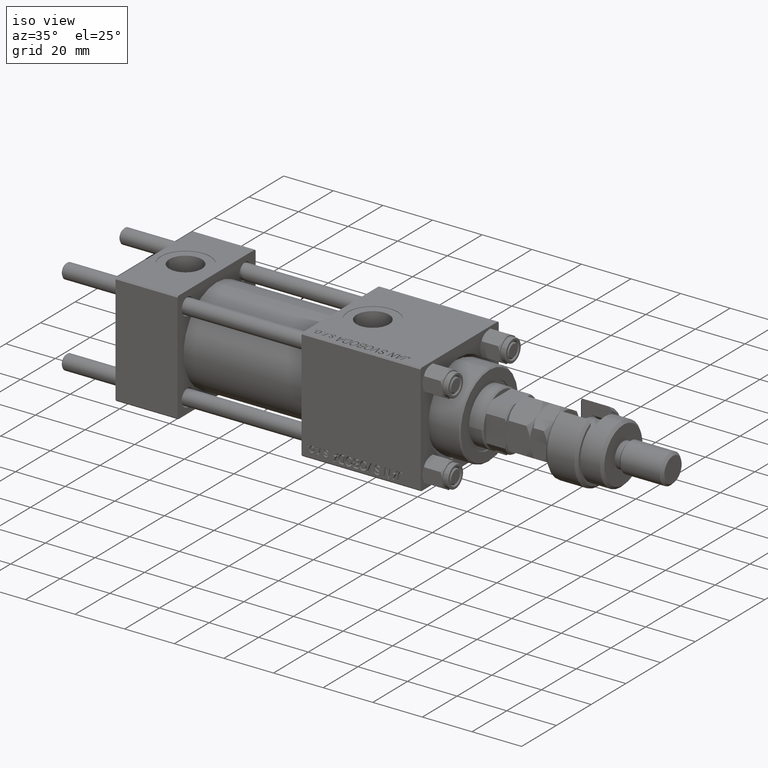
[diagram: clean part render]
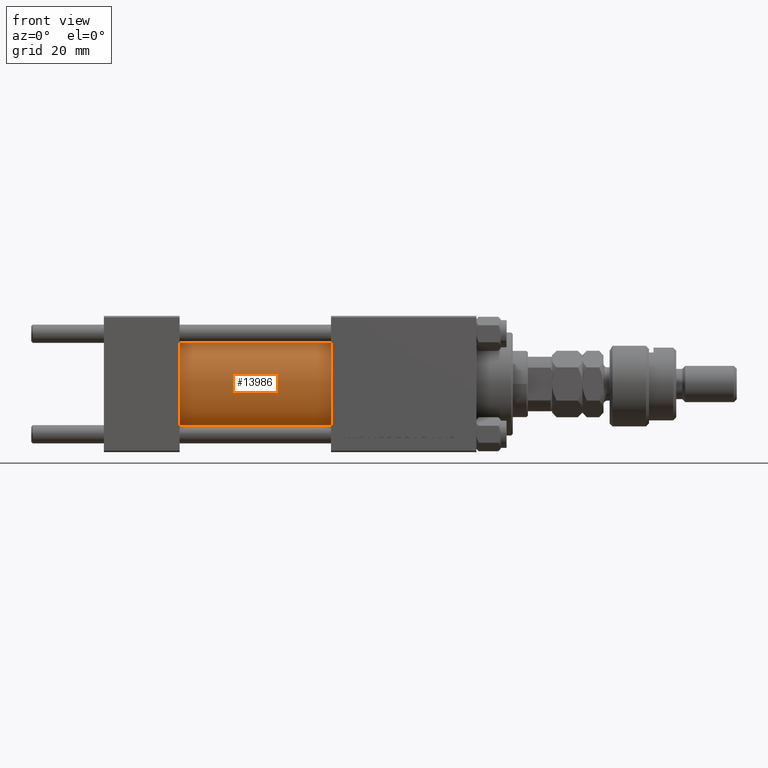
[diagram: tour spotlight — one face highlighted and labeled with its STEP entity id]
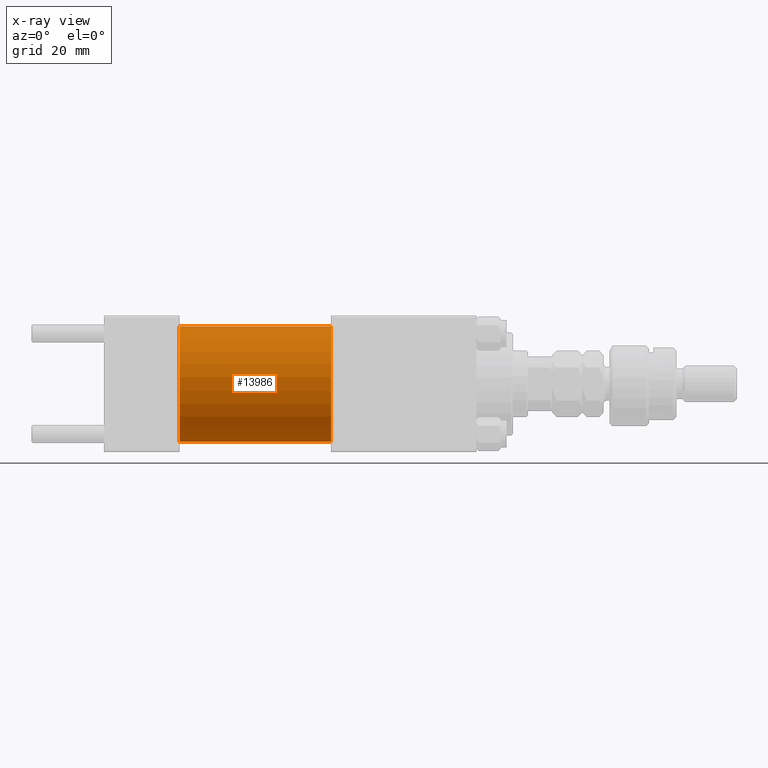
[diagram: x-ray of the same camera — body ghosted, this tour face saturated]
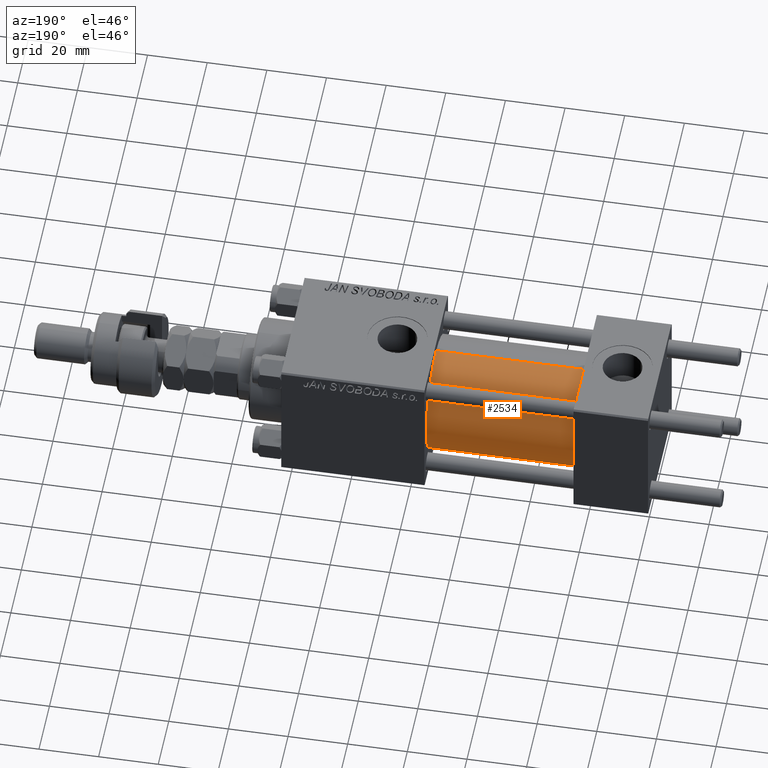
[diagram: tour spotlight — one face highlighted and labeled with its STEP entity id]
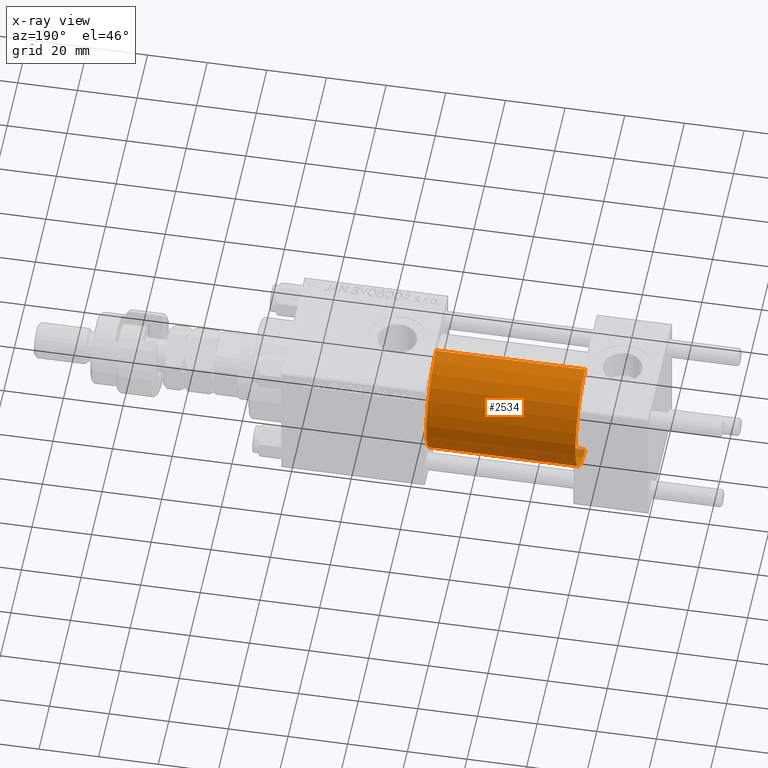
[diagram: x-ray of the same camera — body ghosted, this tour face saturated]
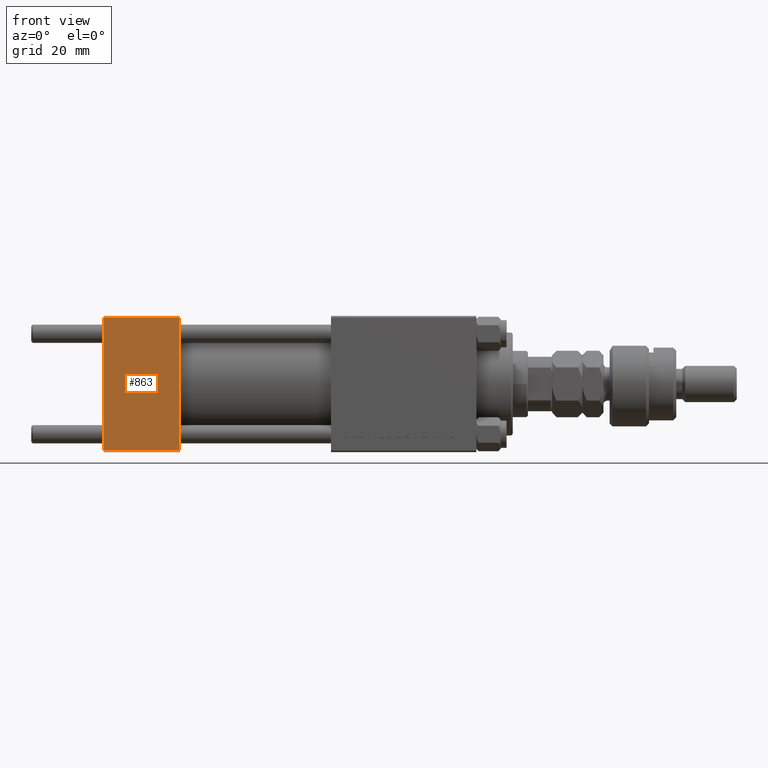
[diagram: tour spotlight — one face highlighted and labeled with its STEP entity id]
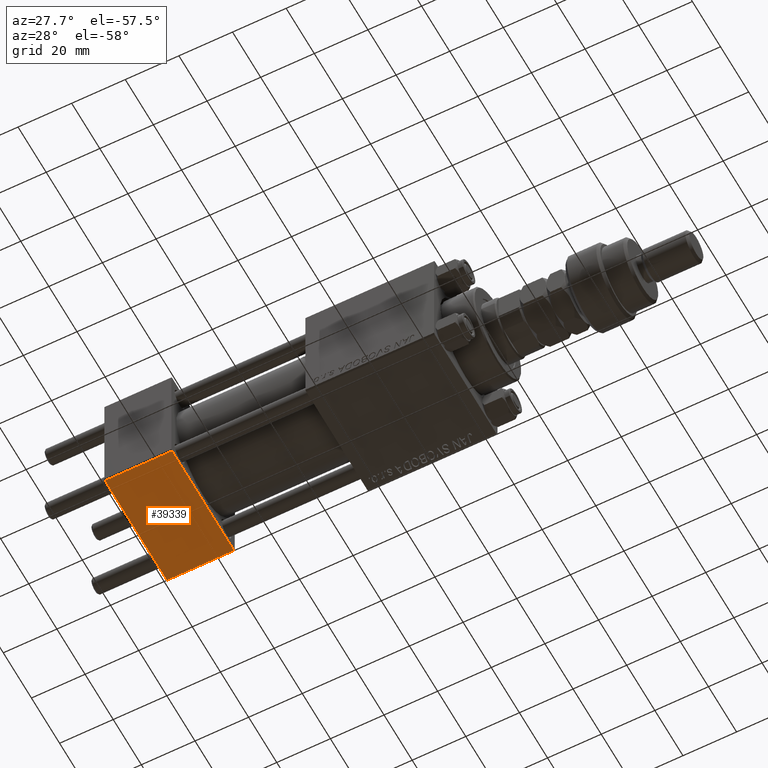
[diagram: tour spotlight — one face highlighted and labeled with its STEP entity id]
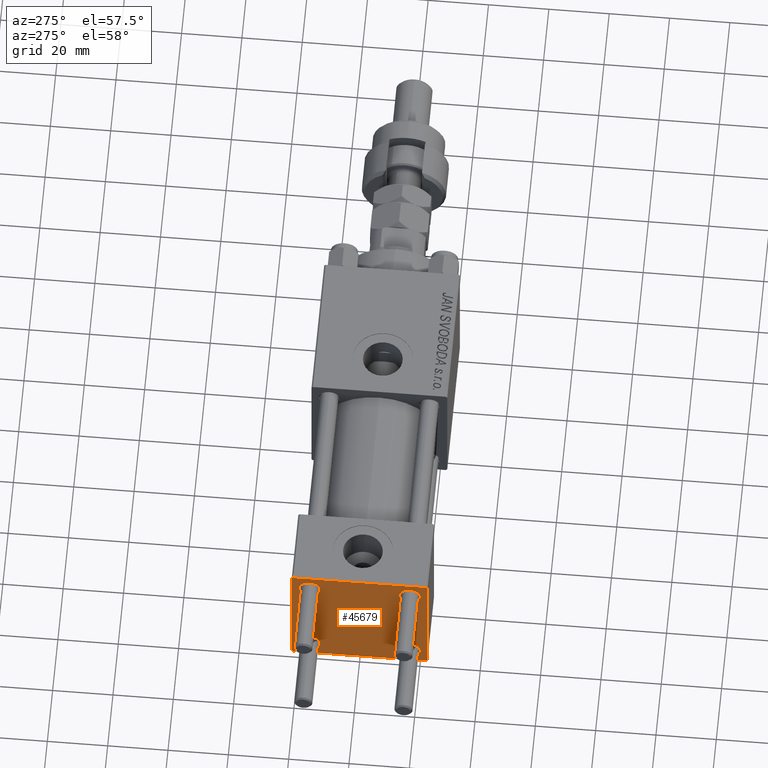
[diagram: tour spotlight — one face highlighted and labeled with its STEP entity id]
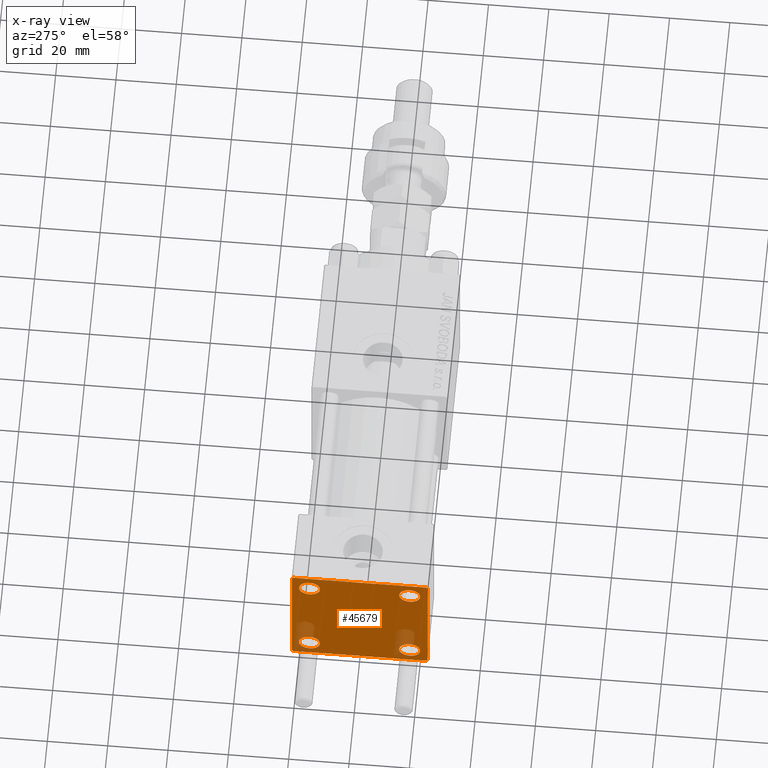
[diagram: x-ray of the same camera — body ghosted, this tour face saturated]
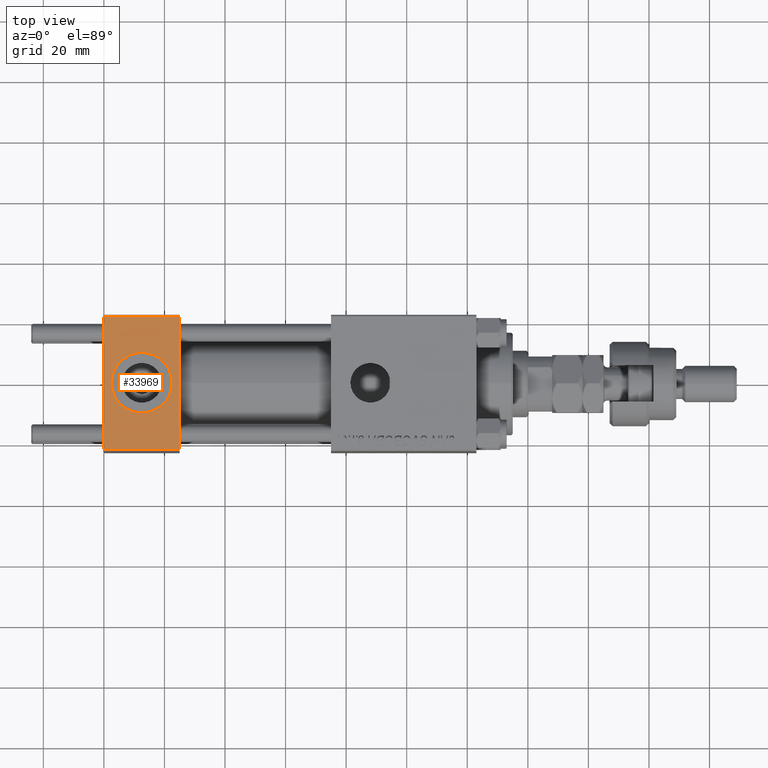
[diagram: tour spotlight — one face highlighted and labeled with its STEP entity id]
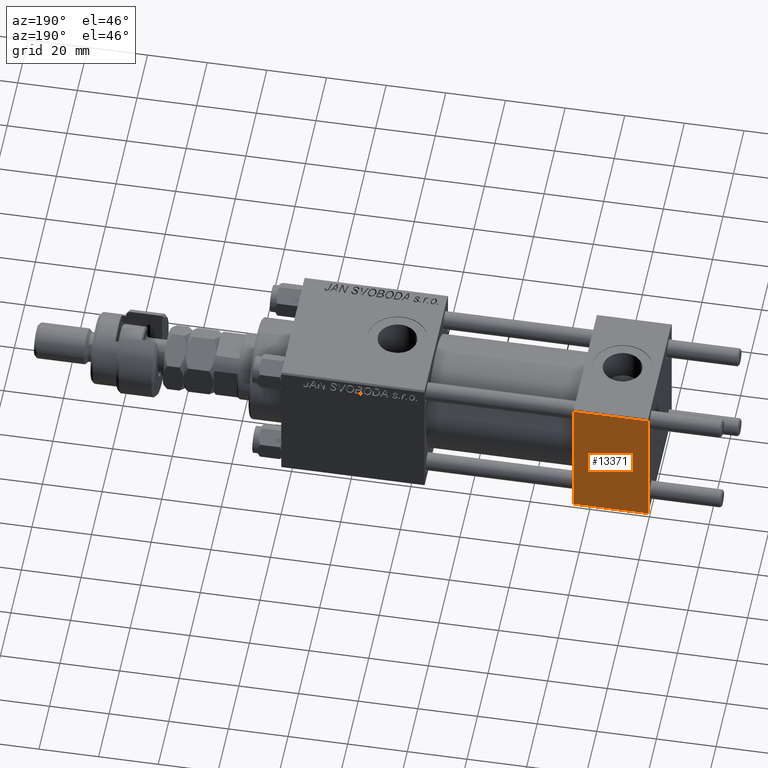
[diagram: tour spotlight — one face highlighted and labeled with its STEP entity id]
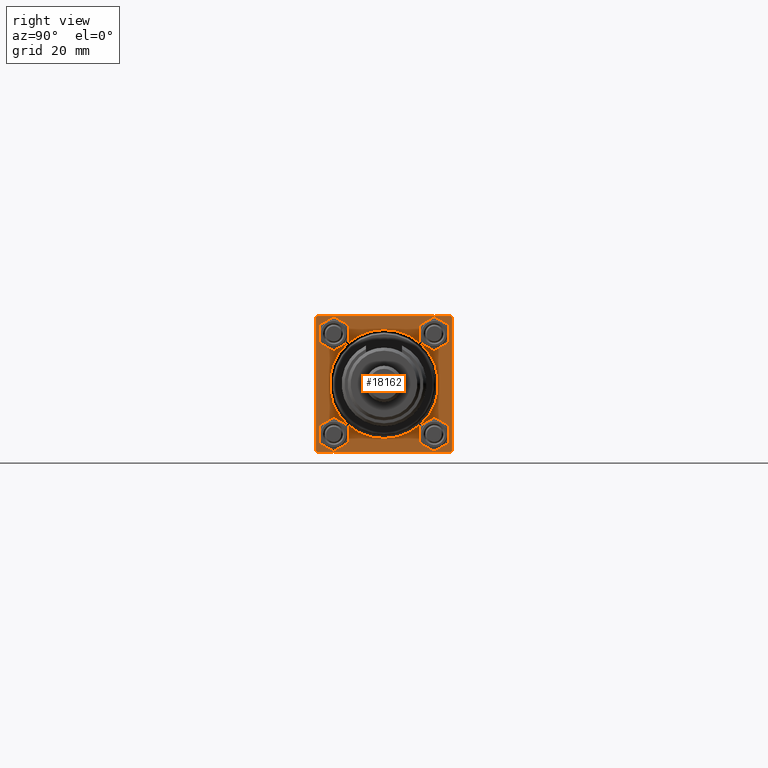
[diagram: tour spotlight — one face highlighted and labeled with its STEP entity id]
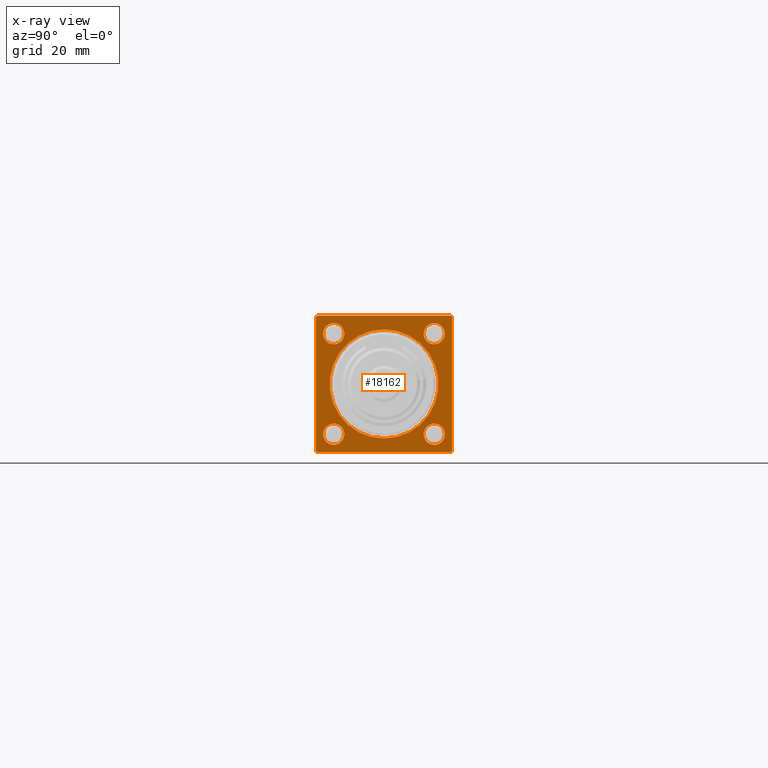
[diagram: x-ray of the same camera — body ghosted, this tour face saturated]
A machine part: a face-by-face anatomy tour. The part has 1218 B-rep faces; the first image is the clean iso view, then the 8 largest visible faces are spotlighted one at a time (largest first), each with its STEP entity span.

Face 1 — front view, entity #13986. An x-ray twin of the same camera follows (body ghosted, this face saturated) — the face is partly hidden behind the body. In plain terms, the highlighted cylindrical surface (partial cylindrical patch) has radius 19 mm, axis along (-1, -0, -0).
Definition (entity closure, byte-faithful):
#294 = ORIENTED_EDGE ( 'NONE', *, *, #11549, .T. ) ;
#334 = EDGE_CURVE ( 'NONE', #32173, #13300, #4693, .T. ) ;
#339 = VERTEX_POINT ( 'NONE', #12162 ) ;
#449 = DIRECTION ( 'NONE',  ( -1.000000000000000000, -0.000000000000000000, -0.000000000000000000 ) ) ;
#4610 = ORIENTED_EDGE ( 'NONE', *, *, #334, .F. ) ;
#4693 = LINE ( 'NONE', #16167, #45212 ) ;
#4881 = EDGE_LOOP ( 'NONE', ( #4610, #16284, #294, #13476 ) ) ;
#6749 = LINE ( 'NONE', #23780, #14803 ) ;
#8276 = CIRCLE ( 'NONE', #12496, 19.00000000000000000 ) ;
#9466 = DIRECTION ( 'NONE',  ( 0.000000000000000000, 0.000000000000000000, -1.000000000000000000 ) ) ;
#9508 = EDGE_CURVE ( 'NONE', #339, #32173, #43676, .T. ) ;
#9783 = AXIS2_PLACEMENT_3D ( 'NONE', #33895, #41647, #21141 ) ;
#11549 = EDGE_CURVE ( 'NONE', #339, #46081, #6749, .T. ) ;
#12162 = CARTESIAN_POINT ( 'NONE',  ( 75.00000000000001421, 0.000000000000000000, 19.00000000000000000 ) ) ;
#12496 = AXIS2_PLACEMENT_3D ( 'NONE', #49001, #31920, #48206 ) ;
#13300 = VERTEX_POINT ( 'NONE', #22360 ) ;
#13476 = ORIENTED_EDGE ( 'NONE', *, *, #34939, .T. ) ;
#13986 = ADVANCED_FACE ( 'NONE', ( #20605 ), #21664, .T. ) ;
#14803 = VECTOR ( 'NONE', #39235, 1000.000000000000000 ) ;
#16167 = CARTESIAN_POINT ( 'NONE',  ( 75.00000000000001421, 2.326828918379970970E-15, -19.00000000000000000 ) ) ;
#16284 = ORIENTED_EDGE ( 'NONE', *, *, #9508, .F. ) ;
#20605 = FACE_OUTER_BOUND ( 'NONE', #4881, .T. ) ;
#21141 = DIRECTION ( 'NONE',  ( 0.000000000000000000, 0.000000000000000000, 1.000000000000000000 ) ) ;
#21664 = CYLINDRICAL_SURFACE ( 'NONE', #9783, 19.00000000000000000 ) ;
#22360 = CARTESIAN_POINT ( 'NONE',  ( 25.00000000000000000, 2.326828918379970970E-15, -19.00000000000000000 ) ) ;
#23780 = CARTESIAN_POINT ( 'NONE',  ( 75.00000000000001421, 0.000000000000000000, 19.00000000000000000 ) ) ;
#26250 = DIRECTION ( 'NONE',  ( 1.000000000000000000, 0.000000000000000000, 0.000000000000000000 ) ) ;
#31920 = DIRECTION ( 'NONE',  ( 1.000000000000000000, -0.000000000000000000, 0.000000000000000000 ) ) ;
#32173 = VERTEX_POINT ( 'NONE', #47440 ) ;
#33895 = CARTESIAN_POINT ( 'NONE',  ( 75.00000000000001421, 0.000000000000000000, 0.000000000000000000 ) ) ;
#33971 = CARTESIAN_POINT ( 'NONE',  ( 75.00000000000001421, 0.000000000000000000, 0.000000000000000000 ) ) ;
#34939 = EDGE_CURVE ( 'NONE', #46081, #13300, #8276, .T. ) ;
#38975 = CARTESIAN_POINT ( 'NONE',  ( 25.00000000000000000, 0.000000000000000000, 19.00000000000000000 ) ) ;
#39235 = DIRECTION ( 'NONE',  ( -1.000000000000000000, -0.000000000000000000, -0.000000000000000000 ) ) ;
#39406 = AXIS2_PLACEMENT_3D ( 'NONE', #33971, #26250, #9466 ) ;
#41647 = DIRECTION ( 'NONE',  ( -1.000000000000000000, -0.000000000000000000, -0.000000000000000000 ) ) ;
#43676 = CIRCLE ( 'NONE', #39406, 19.00000000000000000 ) ;
#45212 = VECTOR ( 'NONE', #449, 1000.000000000000000 ) ;
#46081 = VERTEX_POINT ( 'NONE', #38975 ) ;
#47440 = CARTESIAN_POINT ( 'NONE',  ( 75.00000000000001421, 2.326828918379970970E-15, -19.00000000000000000 ) ) ;
#48206 = DIRECTION ( 'NONE',  ( 0.000000000000000000, 0.000000000000000000, 1.000000000000000000 ) ) ;
#49001 = CARTESIAN_POINT ( 'NONE',  ( 25.00000000000000000, 0.000000000000000000, 0.000000000000000000 ) ) ;

Face 2 — auxiliary view, entity #2534. An x-ray twin of the same camera follows (body ghosted, this face saturated) — the face is partly hidden behind the body. In plain terms, the highlighted cylindrical surface (partial cylindrical patch) has radius 19 mm, axis along (-1, -0, -0).
Definition (entity closure, byte-faithful):
#334 = EDGE_CURVE ( 'NONE', #32173, #13300, #4693, .T. ) ;
#339 = VERTEX_POINT ( 'NONE', #12162 ) ;
#449 = DIRECTION ( 'NONE',  ( -1.000000000000000000, -0.000000000000000000, -0.000000000000000000 ) ) ;
#2534 = ADVANCED_FACE ( 'NONE', ( #35975 ), #52269, .T. ) ;
#2697 = ORIENTED_EDGE ( 'NONE', *, *, #22152, .T. ) ;
#3636 = CIRCLE ( 'NONE', #33396, 19.00000000000000000 ) ;
#4693 = LINE ( 'NONE', #16167, #45212 ) ;
#6749 = LINE ( 'NONE', #23780, #14803 ) ;
#7333 = DIRECTION ( 'NONE',  ( 1.000000000000000000, -0.000000000000000000, 0.000000000000000000 ) ) ;
#9320 = CARTESIAN_POINT ( 'NONE',  ( 75.00000000000001421, 0.000000000000000000, 0.000000000000000000 ) ) ;
#9778 = DIRECTION ( 'NONE',  ( 0.000000000000000000, 0.000000000000000000, -1.000000000000000000 ) ) ;
#11549 = EDGE_CURVE ( 'NONE', #339, #46081, #6749, .T. ) ;
#12162 = CARTESIAN_POINT ( 'NONE',  ( 75.00000000000001421, 0.000000000000000000, 19.00000000000000000 ) ) ;
#13300 = VERTEX_POINT ( 'NONE', #22360 ) ;
#14803 = VECTOR ( 'NONE', #39235, 1000.000000000000000 ) ;
#14924 = EDGE_LOOP ( 'NONE', ( #41645, #34517, #2697, #39803 ) ) ;
#16167 = CARTESIAN_POINT ( 'NONE',  ( 75.00000000000001421, 2.326828918379970970E-15, -19.00000000000000000 ) ) ;
#17055 = DIRECTION ( 'NONE',  ( 0.000000000000000000, 0.000000000000000000, 1.000000000000000000 ) ) ;
#19938 = CIRCLE ( 'NONE', #33545, 19.00000000000000000 ) ;
#21582 = DIRECTION ( 'NONE',  ( -1.000000000000000000, -0.000000000000000000, -0.000000000000000000 ) ) ;
#22152 = EDGE_CURVE ( 'NONE', #13300, #46081, #3636, .T. ) ;
#22360 = CARTESIAN_POINT ( 'NONE',  ( 25.00000000000000000, 2.326828918379970970E-15, -19.00000000000000000 ) ) ;
#23574 = DIRECTION ( 'NONE',  ( 0.000000000000000000, 0.000000000000000000, 1.000000000000000000 ) ) ;
#23780 = CARTESIAN_POINT ( 'NONE',  ( 75.00000000000001421, 0.000000000000000000, 19.00000000000000000 ) ) ;
#32173 = VERTEX_POINT ( 'NONE', #47440 ) ;
#33396 = AXIS2_PLACEMENT_3D ( 'NONE', #43840, #7333, #23574 ) ;
#33545 = AXIS2_PLACEMENT_3D ( 'NONE', #35050, #38539, #9778 ) ;
#34517 = ORIENTED_EDGE ( 'NONE', *, *, #334, .T. ) ;
#35050 = CARTESIAN_POINT ( 'NONE',  ( 75.00000000000001421, 0.000000000000000000, 0.000000000000000000 ) ) ;
#35975 = FACE_OUTER_BOUND ( 'NONE', #14924, .T. ) ;
#37624 = AXIS2_PLACEMENT_3D ( 'NONE', #9320, #21582, #17055 ) ;
#38539 = DIRECTION ( 'NONE',  ( 1.000000000000000000, 0.000000000000000000, 0.000000000000000000 ) ) ;
#38975 = CARTESIAN_POINT ( 'NONE',  ( 25.00000000000000000, 0.000000000000000000, 19.00000000000000000 ) ) ;
#39235 = DIRECTION ( 'NONE',  ( -1.000000000000000000, -0.000000000000000000, -0.000000000000000000 ) ) ;
#39803 = ORIENTED_EDGE ( 'NONE', *, *, #11549, .F. ) ;
#41645 = ORIENTED_EDGE ( 'NONE', *, *, #48228, .F. ) ;
#43840 = CARTESIAN_POINT ( 'NONE',  ( 25.00000000000000000, 0.000000000000000000, 0.000000000000000000 ) ) ;
#45212 = VECTOR ( 'NONE', #449, 1000.000000000000000 ) ;
#46081 = VERTEX_POINT ( 'NONE', #38975 ) ;
#47440 = CARTESIAN_POINT ( 'NONE',  ( 75.00000000000001421, 2.326828918379970970E-15, -19.00000000000000000 ) ) ;
#48228 = EDGE_CURVE ( 'NONE', #32173, #339, #19938, .T. ) ;
#52269 = CYLINDRICAL_SURFACE ( 'NONE', #37624, 19.00000000000000000 ) ;

Face 3 — front view, entity #863. In plain terms, the highlighted planar face has unit normal (0, 1, 0).
Definition (entity closure, byte-faithful):
#863 = ADVANCED_FACE ( 'NONE', ( #26305 ), #42562, .F. ) ;
#2107 = VECTOR ( 'NONE', #2839, 1000.000000000000000 ) ;
#2839 = DIRECTION ( 'NONE',  ( 1.000000000000000000, 0.000000000000000000, 0.000000000000000000 ) ) ;
#3574 = CARTESIAN_POINT ( 'NONE',  ( 25.00000000000000000, -22.50000000000000000, 22.00000000000000000 ) ) ;
#6056 = CARTESIAN_POINT ( 'NONE',  ( 25.00000000000000000, -22.50000000000000000, 22.50000000000000000 ) ) ;
#7314 = DIRECTION ( 'NONE',  ( 0.000000000000000000, 0.000000000000000000, -1.000000000000000000 ) ) ;
#7835 = ORIENTED_EDGE ( 'NONE', *, *, #31986, .T. ) ;
#10237 = EDGE_CURVE ( 'NONE', #19408, #50274, #36675, .T. ) ;
#11451 = EDGE_LOOP ( 'NONE', ( #7835, #39050, #45398, #31714 ) ) ;
#12051 = CARTESIAN_POINT ( 'NONE',  ( 0.000000000000000000, -22.50000000000000000, 22.50000000000000000 ) ) ;
#12989 = VERTEX_POINT ( 'NONE', #51797 ) ;
#17213 = DIRECTION ( 'NONE',  ( -1.000000000000000000, 0.000000000000000000, 0.000000000000000000 ) ) ;
#19082 = LINE ( 'NONE', #39328, #2107 ) ;
#19408 = VERTEX_POINT ( 'NONE', #3574 ) ;
#19708 = AXIS2_PLACEMENT_3D ( 'NONE', #6056, #22308, #28424 ) ;
#20297 = EDGE_CURVE ( 'NONE', #19408, #12989, #51821, .T. ) ;
#20562 = DIRECTION ( 'NONE',  ( 0.000000000000000000, 0.000000000000000000, -1.000000000000000000 ) ) ;
#22296 = VECTOR ( 'NONE', #7314, 1000.000000000000000 ) ;
#22308 = DIRECTION ( 'NONE',  ( -0.000000000000000000, 1.000000000000000000, 0.000000000000000000 ) ) ;
#24433 = VECTOR ( 'NONE', #20562, 1000.000000000000000 ) ;
#26305 = FACE_OUTER_BOUND ( 'NONE', #11451, .T. ) ;
#28424 = DIRECTION ( 'NONE',  ( 0.000000000000000000, -0.000000000000000000, 1.000000000000000000 ) ) ;
#28701 = CARTESIAN_POINT ( 'NONE',  ( 25.00000000000000000, -22.50000000000000000, 22.00000000000000000 ) ) ;
#29926 = CARTESIAN_POINT ( 'NONE',  ( 0.000000000000000000, -22.50000000000000000, 22.00000000000000000 ) ) ;
#31714 = ORIENTED_EDGE ( 'NONE', *, *, #10237, .T. ) ;
#31986 = EDGE_CURVE ( 'NONE', #50274, #42741, #36280, .T. ) ;
#35174 = VECTOR ( 'NONE', #17213, 1000.000000000000000 ) ;
#35274 = CARTESIAN_POINT ( 'NONE',  ( 25.00000000000000000, -22.50000000000000000, 22.50000000000000000 ) ) ;
#36280 = LINE ( 'NONE', #12051, #24433 ) ;
#36675 = LINE ( 'NONE', #28701, #35174 ) ;
#39050 = ORIENTED_EDGE ( 'NONE', *, *, #49055, .T. ) ;
#39328 = CARTESIAN_POINT ( 'NONE',  ( 25.00000000000000000, -22.50000000000000000, -21.99999999999998579 ) ) ;
#42562 = PLANE ( 'NONE',  #19708 ) ;
#42741 = VERTEX_POINT ( 'NONE', #44972 ) ;
#44972 = CARTESIAN_POINT ( 'NONE',  ( 0.000000000000000000, -22.50000000000000000, -21.99999999999997158 ) ) ;
#45398 = ORIENTED_EDGE ( 'NONE', *, *, #20297, .F. ) ;
#49055 = EDGE_CURVE ( 'NONE', #42741, #12989, #19082, .T. ) ;
#50274 = VERTEX_POINT ( 'NONE', #29926 ) ;
#51797 = CARTESIAN_POINT ( 'NONE',  ( 25.00000000000000000, -22.50000000000000000, -21.99999999999997158 ) ) ;
#51821 = LINE ( 'NONE', #35274, #22296 ) ;

Face 4 — auxiliary view, entity #39339. In plain terms, the highlighted planar face has unit normal (0, 0, -1).
Definition (entity closure, byte-faithful):
#276 = LINE ( 'NONE', #32748, #40178 ) ;
#1296 = LINE ( 'NONE', #30037, #12194 ) ;
#2362 = ORIENTED_EDGE ( 'NONE', *, *, #23021, .T. ) ;
#4943 = VERTEX_POINT ( 'NONE', #17636 ) ;
#9243 = EDGE_CURVE ( 'NONE', #43518, #4943, #1296, .T. ) ;
#10954 = CARTESIAN_POINT ( 'NONE',  ( 25.00000000000000000, 21.99999999999999289, -22.49999999999999645 ) ) ;
#12194 = VECTOR ( 'NONE', #46576, 1000.000000000000000 ) ;
#12461 = CARTESIAN_POINT ( 'NONE',  ( 25.00000000000000000, 21.99999999999999289, -22.49999999999999645 ) ) ;
#13507 = AXIS2_PLACEMENT_3D ( 'NONE', #41938, #45944, #34447 ) ;
#14364 = CARTESIAN_POINT ( 'NONE',  ( 25.00000000000000000, 22.50000000000000000, -22.49999999999999645 ) ) ;
#16726 = CARTESIAN_POINT ( 'NONE',  ( 25.00000000000000000, -21.99999999999997158, -22.50000000000000711 ) ) ;
#17636 = CARTESIAN_POINT ( 'NONE',  ( 0.000000000000000000, -21.99999999999997158, -22.50000000000000711 ) ) ;
#17934 = FACE_OUTER_BOUND ( 'NONE', #48771, .T. ) ;
#18025 = EDGE_CURVE ( 'NONE', #41090, #4943, #276, .T. ) ;
#20006 = LINE ( 'NONE', #10954, #36324 ) ;
#21508 = CARTESIAN_POINT ( 'NONE',  ( 0.000000000000000000, 21.99999999999999289, -22.49999999999999645 ) ) ;
#23021 = EDGE_CURVE ( 'NONE', #33165, #43518, #51385, .T. ) ;
#26455 = PLANE ( 'NONE',  #13507 ) ;
#27464 = VECTOR ( 'NONE', #50342, 1000.000000000000000 ) ;
#30037 = CARTESIAN_POINT ( 'NONE',  ( 0.000000000000000000, -21.99999999999998579, -22.50000000000000711 ) ) ;
#32634 = ORIENTED_EDGE ( 'NONE', *, *, #18025, .F. ) ;
#32748 = CARTESIAN_POINT ( 'NONE',  ( 0.000000000000000000, 22.50000000000000000, -22.49999999999999645 ) ) ;
#33165 = VERTEX_POINT ( 'NONE', #12461 ) ;
#34447 = DIRECTION ( 'NONE',  ( 0.000000000000000000, 1.000000000000000000, 2.312964634635742957E-16 ) ) ;
#35881 = EDGE_CURVE ( 'NONE', #41090, #33165, #20006, .T. ) ;
#36324 = VECTOR ( 'NONE', #48537, 1000.000000000000000 ) ;
#38598 = ORIENTED_EDGE ( 'NONE', *, *, #9243, .T. ) ;
#39339 = ADVANCED_FACE ( 'NONE', ( #17934 ), #26455, .T. ) ;
#40178 = VECTOR ( 'NONE', #49035, 1000.000000000000000 ) ;
#41090 = VERTEX_POINT ( 'NONE', #21508 ) ;
#41938 = CARTESIAN_POINT ( 'NONE',  ( 25.00000000000000000, 22.50000000000000000, -22.49999999999999645 ) ) ;
#43518 = VERTEX_POINT ( 'NONE', #16726 ) ;
#45944 = DIRECTION ( 'NONE',  ( 0.000000000000000000, 2.312964634635742957E-16, -1.000000000000000000 ) ) ;
#46576 = DIRECTION ( 'NONE',  ( -1.000000000000000000, 0.000000000000000000, 0.000000000000000000 ) ) ;
#48424 = ORIENTED_EDGE ( 'NONE', *, *, #35881, .T. ) ;
#48537 = DIRECTION ( 'NONE',  ( 1.000000000000000000, 0.000000000000000000, 0.000000000000000000 ) ) ;
#48771 = EDGE_LOOP ( 'NONE', ( #32634, #48424, #2362, #38598 ) ) ;
#49035 = DIRECTION ( 'NONE',  ( 0.000000000000000000, -1.000000000000000000, -2.312964634635742957E-16 ) ) ;
#50342 = DIRECTION ( 'NONE',  ( 0.000000000000000000, -1.000000000000000000, -2.312964634635742957E-16 ) ) ;
#51385 = LINE ( 'NONE', #14364, #27464 ) ;

Face 5 — auxiliary view, entity #45679. An x-ray twin of the same camera follows (body ghosted, this face saturated) — the face is partly hidden behind the body. In plain terms, the highlighted planar face has unit normal (-1, 0, 0).
Definition (entity closure, byte-faithful):
#6 = VERTEX_POINT ( 'NONE', #11152 ) ;
#276 = LINE ( 'NONE', #32748, #40178 ) ;
#1169 = VECTOR ( 'NONE', #36497, 1000.000000000000000 ) ;
#1471 = AXIS2_PLACEMENT_3D ( 'NONE', #14594, #43365, #15119 ) ;
#1893 = CARTESIAN_POINT ( 'NONE',  ( 0.000000000000000000, 22.24999999999999645, 22.24999999999999645 ) ) ;
#2099 = DIRECTION ( 'NONE',  ( -0.000000000000000000, 0.7071067811865525687, 0.7071067811865425767 ) ) ;
#2455 = CARTESIAN_POINT ( 'NONE',  ( 0.000000000000000000, -16.59999999999999076, 16.60000000000000853 ) ) ;
#2536 = CARTESIAN_POINT ( 'NONE',  ( 0.000000000000000000, 16.59999999999999787, -20.10000000000000142 ) ) ;
#2978 = VECTOR ( 'NONE', #42134, 1000.000000000000114 ) ;
#3954 = ORIENTED_EDGE ( 'NONE', *, *, #18025, .T. ) ;
#4296 = ORIENTED_EDGE ( 'NONE', *, *, #32440, .T. ) ;
#4807 = CARTESIAN_POINT ( 'NONE',  ( 0.000000000000000000, -16.59999999999999076, -16.60000000000000853 ) ) ;
#4943 = VERTEX_POINT ( 'NONE', #17636 ) ;
#5162 = CARTESIAN_POINT ( 'NONE',  ( 0.000000000000000000, -16.59999999999999076, -13.10000000000001030 ) ) ;
#5373 = ORIENTED_EDGE ( 'NONE', *, *, #7657, .T. ) ;
#5990 = CARTESIAN_POINT ( 'NONE',  ( 0.000000000000000000, 22.50000000000000000, -21.99999999999996803 ) ) ;
#6450 = DIRECTION ( 'NONE',  ( 0.000000000000000000, 0.000000000000000000, 1.000000000000000000 ) ) ;
#6454 = EDGE_LOOP ( 'NONE', ( #42285, #46449 ) ) ;
#7055 = EDGE_CURVE ( 'NONE', #31303, #31604, #29971, .T. ) ;
#7116 = VECTOR ( 'NONE', #43501, 1000.000000000000000 ) ;
#7489 = ORIENTED_EDGE ( 'NONE', *, *, #11808, .T. ) ;
#7553 = CARTESIAN_POINT ( 'NONE',  ( 0.000000000000000000, -16.59999999999999076, 13.10000000000001030 ) ) ;
#7657 = EDGE_CURVE ( 'NONE', #36420, #25896, #14652, .T. ) ;
#7953 = LINE ( 'NONE', #35640, #12533 ) ;
#8693 = VERTEX_POINT ( 'NONE', #5990 ) ;
#8964 = DIRECTION ( 'NONE',  ( -0.000000000000000000, 0.000000000000000000, 1.000000000000000000 ) ) ;
#10132 = VERTEX_POINT ( 'NONE', #19904 ) ;
#10804 = CIRCLE ( 'NONE', #1471, 3.499999999999996003 ) ;
#11152 = CARTESIAN_POINT ( 'NONE',  ( 0.000000000000000000, 22.50000000000000000, 21.99999999999999645 ) ) ;
#11200 = ORIENTED_EDGE ( 'NONE', *, *, #42448, .T. ) ;
#11422 = CIRCLE ( 'NONE', #12273, 3.499999999999996003 ) ;
#11576 = EDGE_CURVE ( 'NONE', #4943, #42741, #51516, .T. ) ;
#11808 = EDGE_CURVE ( 'NONE', #31604, #31303, #11422, .T. ) ;
#12010 = DIRECTION ( 'NONE',  ( 0.000000000000000000, 0.000000000000000000, 1.000000000000000000 ) ) ;
#12051 = CARTESIAN_POINT ( 'NONE',  ( 0.000000000000000000, -22.50000000000000000, 22.50000000000000000 ) ) ;
#12142 = CARTESIAN_POINT ( 'NONE',  ( 0.000000000000000000, 21.99999999999999289, 22.50000000000000355 ) ) ;
#12273 = AXIS2_PLACEMENT_3D ( 'NONE', #46854, #22341, #33337 ) ;
#12319 = DIRECTION ( 'NONE',  ( 0.000000000000000000, 0.000000000000000000, 1.000000000000000000 ) ) ;
#12533 = VECTOR ( 'NONE', #35377, 1000.000000000000000 ) ;
#12962 = DIRECTION ( 'NONE',  ( -1.000000000000000000, 0.000000000000000000, -0.000000000000000000 ) ) ;
#14479 = CARTESIAN_POINT ( 'NONE',  ( 0.000000000000000000, 22.25000000000014566, -22.24999999999984013 ) ) ;
#14484 = CARTESIAN_POINT ( 'NONE',  ( 0.000000000000000000, -22.25000000000014566, -22.24999999999984013 ) ) ;
#14594 = CARTESIAN_POINT ( 'NONE',  ( 0.000000000000000000, -16.59999999999999076, 16.60000000000000853 ) ) ;
#14652 = CIRCLE ( 'NONE', #44456, 3.499999999999996003 ) ;
#15003 = DIRECTION ( 'NONE',  ( 0.000000000000000000, -0.7071067811865426878, 0.7071067811865524577 ) ) ;
#15119 = DIRECTION ( 'NONE',  ( 0.000000000000000000, 0.000000000000000000, 1.000000000000000000 ) ) ;
#15594 = AXIS2_PLACEMENT_3D ( 'NONE', #32229, #12962, #8964 ) ;
#15998 = FACE_BOUND ( 'NONE', #44794, .T. ) ;
#16238 = ORIENTED_EDGE ( 'NONE', *, *, #36176, .F. ) ;
#16385 = VERTEX_POINT ( 'NONE', #23812 ) ;
#16794 = CIRCLE ( 'NONE', #45624, 3.499999999999996003 ) ;
#17020 = CARTESIAN_POINT ( 'NONE',  ( 0.000000000000000000, 16.59999999999999787, 16.60000000000000497 ) ) ;
#17472 = VERTEX_POINT ( 'NONE', #18190 ) ;
#17576 = EDGE_CURVE ( 'NONE', #10132, #17472, #25684, .T. ) ;
#17636 = CARTESIAN_POINT ( 'NONE',  ( 0.000000000000000000, -21.99999999999997158, -22.50000000000000711 ) ) ;
#18025 = EDGE_CURVE ( 'NONE', #41090, #4943, #276, .T. ) ;
#18190 = CARTESIAN_POINT ( 'NONE',  ( 0.000000000000000000, 16.59999999999999787, 13.10000000000000675 ) ) ;
#19275 = AXIS2_PLACEMENT_3D ( 'NONE', #17020, #25529, #49534 ) ;
#19383 = LINE ( 'NONE', #51907, #50531 ) ;
#19734 = ORIENTED_EDGE ( 'NONE', *, *, #31986, .F. ) ;
#19904 = CARTESIAN_POINT ( 'NONE',  ( 0.000000000000000000, 16.59999999999999787, 20.10000000000000142 ) ) ;
#20562 = DIRECTION ( 'NONE',  ( 0.000000000000000000, 0.000000000000000000, -1.000000000000000000 ) ) ;
#20934 = DIRECTION ( 'NONE',  ( 1.000000000000000000, -0.000000000000000000, 0.000000000000000000 ) ) ;
#20967 = CARTESIAN_POINT ( 'NONE',  ( 0.000000000000000000, -16.59999999999999076, -16.60000000000000853 ) ) ;
#21508 = CARTESIAN_POINT ( 'NONE',  ( 0.000000000000000000, 21.99999999999999289, -22.49999999999999645 ) ) ;
#22106 = ORIENTED_EDGE ( 'NONE', *, *, #11576, .T. ) ;
#22138 = LINE ( 'NONE', #1893, #2978 ) ;
#22341 = DIRECTION ( 'NONE',  ( 1.000000000000000000, -0.000000000000000000, 0.000000000000000000 ) ) ;
#22371 = CARTESIAN_POINT ( 'NONE',  ( 0.000000000000000000, 16.59999999999999787, -16.60000000000000497 ) ) ;
#22635 = DIRECTION ( 'NONE',  ( 0.000000000000000000, 0.000000000000000000, 1.000000000000000000 ) ) ;
#22687 = ORIENTED_EDGE ( 'NONE', *, *, #31237, .T. ) ;
#22908 = CARTESIAN_POINT ( 'NONE',  ( 0.000000000000000000, -16.59999999999999076, 20.10000000000000853 ) ) ;
#23812 = CARTESIAN_POINT ( 'NONE',  ( 0.000000000000000000, -21.99999999999997868, 22.50000000000000000 ) ) ;
#23964 = FACE_BOUND ( 'NONE', #50853, .T. ) ;
#24301 = EDGE_LOOP ( 'NONE', ( #11200, #35581, #3954, #22106, #19734, #31858, #16238, #46672 ) ) ;
#24433 = VECTOR ( 'NONE', #20562, 1000.000000000000000 ) ;
#24629 = CARTESIAN_POINT ( 'NONE',  ( 0.000000000000000000, 16.59999999999999787, -13.10000000000000675 ) ) ;
#25014 = CARTESIAN_POINT ( 'NONE',  ( 0.000000000000000000, -16.59999999999999076, -20.10000000000000497 ) ) ;
#25444 = CIRCLE ( 'NONE', #32252, 3.499999999999996003 ) ;
#25529 = DIRECTION ( 'NONE',  ( 1.000000000000000000, -0.000000000000000000, 0.000000000000000000 ) ) ;
#25684 = CIRCLE ( 'NONE', #43556, 3.499999999999996003 ) ;
#25896 = VERTEX_POINT ( 'NONE', #22908 ) ;
#26628 = DIRECTION ( 'NONE',  ( 1.000000000000000000, -0.000000000000000000, 0.000000000000000000 ) ) ;
#27765 = VERTEX_POINT ( 'NONE', #5162 ) ;
#27979 = LINE ( 'NONE', #40774, #1169 ) ;
#28904 = VERTEX_POINT ( 'NONE', #25014 ) ;
#29926 = CARTESIAN_POINT ( 'NONE',  ( 0.000000000000000000, -22.50000000000000000, 22.00000000000000000 ) ) ;
#29971 = CIRCLE ( 'NONE', #35058, 3.499999999999996003 ) ;
#30253 = DIRECTION ( 'NONE',  ( 1.000000000000000000, -0.000000000000000000, 0.000000000000000000 ) ) ;
#31237 = EDGE_CURVE ( 'NONE', #17472, #10132, #32873, .T. ) ;
#31303 = VERTEX_POINT ( 'NONE', #2536 ) ;
#31604 = VERTEX_POINT ( 'NONE', #24629 ) ;
#31858 = ORIENTED_EDGE ( 'NONE', *, *, #42606, .T. ) ;
#31986 = EDGE_CURVE ( 'NONE', #50274, #42741, #36280, .T. ) ;
#32229 = CARTESIAN_POINT ( 'NONE',  ( 0.000000000000000000, 0.000000000000000000, 0.000000000000000000 ) ) ;
#32252 = AXIS2_PLACEMENT_3D ( 'NONE', #4807, #45300, #12010 ) ;
#32440 = EDGE_CURVE ( 'NONE', #25896, #36420, #10804, .T. ) ;
#32655 = EDGE_CURVE ( 'NONE', #27765, #28904, #16794, .T. ) ;
#32677 = VECTOR ( 'NONE', #15003, 1000.000000000000000 ) ;
#32748 = CARTESIAN_POINT ( 'NONE',  ( 0.000000000000000000, 22.50000000000000000, -22.49999999999999645 ) ) ;
#32873 = CIRCLE ( 'NONE', #19275, 3.499999999999996003 ) ;
#33337 = DIRECTION ( 'NONE',  ( 0.000000000000000000, 0.000000000000000000, 1.000000000000000000 ) ) ;
#33981 = DIRECTION ( 'NONE',  ( 0.000000000000000000, 0.000000000000000000, 1.000000000000000000 ) ) ;
#35058 = AXIS2_PLACEMENT_3D ( 'NONE', #22371, #26628, #22635 ) ;
#35377 = DIRECTION ( 'NONE',  ( 0.000000000000000000, -1.000000000000000000, -7.709882115452476934E-17 ) ) ;
#35581 = ORIENTED_EDGE ( 'NONE', *, *, #46090, .T. ) ;
#35640 = CARTESIAN_POINT ( 'NONE',  ( 0.000000000000000000, 22.50000000000000000, 22.50000000000000355 ) ) ;
#36176 = EDGE_CURVE ( 'NONE', #52267, #16385, #7953, .T. ) ;
#36220 = FACE_OUTER_BOUND ( 'NONE', #24301, .T. ) ;
#36280 = LINE ( 'NONE', #12051, #24433 ) ;
#36420 = VERTEX_POINT ( 'NONE', #7553 ) ;
#36497 = DIRECTION ( 'NONE',  ( 0.000000000000000000, 0.000000000000000000, -1.000000000000000000 ) ) ;
#37337 = DIRECTION ( 'NONE',  ( 1.000000000000000000, -0.000000000000000000, 0.000000000000000000 ) ) ;
#40178 = VECTOR ( 'NONE', #49035, 1000.000000000000000 ) ;
#40774 = CARTESIAN_POINT ( 'NONE',  ( 0.000000000000000000, 22.50000000000000000, 22.50000000000000355 ) ) ;
#40833 = EDGE_CURVE ( 'NONE', #28904, #27765, #25444, .T. ) ;
#41090 = VERTEX_POINT ( 'NONE', #21508 ) ;
#41337 = CARTESIAN_POINT ( 'NONE',  ( 0.000000000000000000, 16.59999999999999787, 16.60000000000000497 ) ) ;
#42009 = ORIENTED_EDGE ( 'NONE', *, *, #17576, .T. ) ;
#42134 = DIRECTION ( 'NONE',  ( 0.000000000000000000, 0.7071067811865474617, -0.7071067811865474617 ) ) ;
#42285 = ORIENTED_EDGE ( 'NONE', *, *, #32655, .T. ) ;
#42448 = EDGE_CURVE ( 'NONE', #6, #8693, #27979, .T. ) ;
#42606 = EDGE_CURVE ( 'NONE', #50274, #16385, #19383, .T. ) ;
#42741 = VERTEX_POINT ( 'NONE', #44972 ) ;
#43179 = ORIENTED_EDGE ( 'NONE', *, *, #7055, .T. ) ;
#43365 = DIRECTION ( 'NONE',  ( 1.000000000000000000, -0.000000000000000000, 0.000000000000000000 ) ) ;
#43450 = EDGE_LOOP ( 'NONE', ( #4296, #5373 ) ) ;
#43501 = DIRECTION ( 'NONE',  ( -0.000000000000000000, -0.7071067811865426878, -0.7071067811865524577 ) ) ;
#43556 = AXIS2_PLACEMENT_3D ( 'NONE', #41337, #37337, #12319 ) ;
#44456 = AXIS2_PLACEMENT_3D ( 'NONE', #2455, #20934, #6450 ) ;
#44794 = EDGE_LOOP ( 'NONE', ( #7489, #43179 ) ) ;
#44972 = CARTESIAN_POINT ( 'NONE',  ( 0.000000000000000000, -22.50000000000000000, -21.99999999999997158 ) ) ;
#45215 = PLANE ( 'NONE',  #15594 ) ;
#45300 = DIRECTION ( 'NONE',  ( 1.000000000000000000, -0.000000000000000000, 0.000000000000000000 ) ) ;
#45624 = AXIS2_PLACEMENT_3D ( 'NONE', #20967, #30253, #33981 ) ;
#45679 = ADVANCED_FACE ( 'NONE', ( #47967, #49477, #15998, #23964, #36220 ), #45215, .T. ) ;
#46090 = EDGE_CURVE ( 'NONE', #8693, #41090, #52034, .T. ) ;
#46449 = ORIENTED_EDGE ( 'NONE', *, *, #40833, .T. ) ;
#46672 = ORIENTED_EDGE ( 'NONE', *, *, #49786, .T. ) ;
#46854 = CARTESIAN_POINT ( 'NONE',  ( 0.000000000000000000, 16.59999999999999787, -16.60000000000000497 ) ) ;
#47967 = FACE_BOUND ( 'NONE', #43450, .T. ) ;
#49035 = DIRECTION ( 'NONE',  ( 0.000000000000000000, -1.000000000000000000, -2.312964634635742957E-16 ) ) ;
#49477 = FACE_BOUND ( 'NONE', #6454, .T. ) ;
#49534 = DIRECTION ( 'NONE',  ( 0.000000000000000000, 0.000000000000000000, 1.000000000000000000 ) ) ;
#49786 = EDGE_CURVE ( 'NONE', #52267, #6, #22138, .T. ) ;
#50274 = VERTEX_POINT ( 'NONE', #29926 ) ;
#50531 = VECTOR ( 'NONE', #2099, 999.9999999999998863 ) ;
#50853 = EDGE_LOOP ( 'NONE', ( #42009, #22687 ) ) ;
#51516 = LINE ( 'NONE', #14484, #32677 ) ;
#51907 = CARTESIAN_POINT ( 'NONE',  ( -0.000000000000000000, -22.24999999999984013, 22.25000000000015277 ) ) ;
#52034 = LINE ( 'NONE', #14479, #7116 ) ;
#52267 = VERTEX_POINT ( 'NONE', #12142 ) ;

Face 6 — top view, entity #33969. In plain terms, the highlighted planar face has unit normal (0, 0, -1).
Definition (entity closure, byte-faithful):
#558 = FACE_OUTER_BOUND ( 'NONE', #40648, .T. ) ;
#622 = VERTEX_POINT ( 'NONE', #9923 ) ;
#884 = EDGE_CURVE ( 'NONE', #16385, #622, #35335, .T. ) ;
#4456 = DIRECTION ( 'NONE',  ( 0.000000000000000000, -1.000000000000000000, -7.709882115452476934E-17 ) ) ;
#5590 = CARTESIAN_POINT ( 'NONE',  ( 25.00000000000000000, 22.50000000000000000, 22.50000000000000355 ) ) ;
#5687 = CIRCLE ( 'NONE', #11653, 9.999999999999998224 ) ;
#7191 = CARTESIAN_POINT ( 'NONE',  ( 12.50000000000000000, -1.734723475976807094E-15, 22.50000000000000000 ) ) ;
#7953 = LINE ( 'NONE', #35640, #12533 ) ;
#8769 = ORIENTED_EDGE ( 'NONE', *, *, #35307, .F. ) ;
#8836 = DIRECTION ( 'NONE',  ( -1.000000000000000000, 0.000000000000000000, 0.000000000000000000 ) ) ;
#9923 = CARTESIAN_POINT ( 'NONE',  ( 25.00000000000000000, -21.99999999999997868, 22.50000000000000000 ) ) ;
#10472 = EDGE_CURVE ( 'NONE', #40507, #52267, #32820, .T. ) ;
#11653 = AXIS2_PLACEMENT_3D ( 'NONE', #48141, #36118, #20152 ) ;
#11910 = CARTESIAN_POINT ( 'NONE',  ( 25.00000000000000000, -21.99999999999999289, 22.50000000000000000 ) ) ;
#12142 = CARTESIAN_POINT ( 'NONE',  ( 0.000000000000000000, 21.99999999999999289, 22.50000000000000355 ) ) ;
#12533 = VECTOR ( 'NONE', #35377, 1000.000000000000000 ) ;
#13047 = DIRECTION ( 'NONE',  ( 0.000000000000000000, 1.000000000000000000, 7.709882115452476934E-17 ) ) ;
#14926 = DIRECTION ( 'NONE',  ( 0.000000000000000000, 0.000000000000000000, 1.000000000000000000 ) ) ;
#15005 = CARTESIAN_POINT ( 'NONE',  ( 22.50000000000000000, -1.734723475976807094E-15, 22.50000000000000000 ) ) ;
#15328 = EDGE_LOOP ( 'NONE', ( #52168, #8769 ) ) ;
#15909 = DIRECTION ( 'NONE',  ( 1.000000000000000000, 0.000000000000000000, 0.000000000000000000 ) ) ;
#16306 = VECTOR ( 'NONE', #15909, 1000.000000000000000 ) ;
#16385 = VERTEX_POINT ( 'NONE', #23812 ) ;
#16974 = CARTESIAN_POINT ( 'NONE',  ( 25.00000000000000000, 22.50000000000000000, 22.50000000000000355 ) ) ;
#17825 = EDGE_CURVE ( 'NONE', #43206, #22829, #29936, .T. ) ;
#19638 = ORIENTED_EDGE ( 'NONE', *, *, #36176, .T. ) ;
#20152 = DIRECTION ( 'NONE',  ( 1.000000000000000000, 0.000000000000000000, 0.000000000000000000 ) ) ;
#21979 = EDGE_CURVE ( 'NONE', #40507, #622, #24696, .T. ) ;
#22451 = VECTOR ( 'NONE', #8836, 1000.000000000000000 ) ;
#22829 = VERTEX_POINT ( 'NONE', #31699 ) ;
#22999 = ORIENTED_EDGE ( 'NONE', *, *, #21979, .F. ) ;
#23812 = CARTESIAN_POINT ( 'NONE',  ( 0.000000000000000000, -21.99999999999997868, 22.50000000000000000 ) ) ;
#24014 = AXIS2_PLACEMENT_3D ( 'NONE', #7191, #14926, #27176 ) ;
#24696 = LINE ( 'NONE', #16974, #32528 ) ;
#25037 = DIRECTION ( 'NONE',  ( 0.000000000000000000, 7.709882115452476934E-17, -1.000000000000000000 ) ) ;
#25215 = AXIS2_PLACEMENT_3D ( 'NONE', #5590, #25037, #13047 ) ;
#25555 = FACE_BOUND ( 'NONE', #15328, .T. ) ;
#27176 = DIRECTION ( 'NONE',  ( 1.000000000000000000, 0.000000000000000000, 0.000000000000000000 ) ) ;
#29936 = CIRCLE ( 'NONE', #24014, 9.999999999999998224 ) ;
#31699 = CARTESIAN_POINT ( 'NONE',  ( 2.500000000000003997, -5.100766768294543310E-16, 22.50000000000000000 ) ) ;
#32528 = VECTOR ( 'NONE', #4456, 1000.000000000000000 ) ;
#32820 = LINE ( 'NONE', #41083, #22451 ) ;
#33969 = ADVANCED_FACE ( 'NONE', ( #25555, #558 ), #42082, .F. ) ;
#35008 = ORIENTED_EDGE ( 'NONE', *, *, #10472, .T. ) ;
#35307 = EDGE_CURVE ( 'NONE', #22829, #43206, #5687, .T. ) ;
#35335 = LINE ( 'NONE', #11910, #16306 ) ;
#35377 = DIRECTION ( 'NONE',  ( 0.000000000000000000, -1.000000000000000000, -7.709882115452476934E-17 ) ) ;
#35640 = CARTESIAN_POINT ( 'NONE',  ( 0.000000000000000000, 22.50000000000000000, 22.50000000000000355 ) ) ;
#35821 = CARTESIAN_POINT ( 'NONE',  ( 25.00000000000000000, 21.99999999999999289, 22.50000000000000355 ) ) ;
#35830 = ORIENTED_EDGE ( 'NONE', *, *, #884, .T. ) ;
#36118 = DIRECTION ( 'NONE',  ( 0.000000000000000000, 0.000000000000000000, 1.000000000000000000 ) ) ;
#36176 = EDGE_CURVE ( 'NONE', #52267, #16385, #7953, .T. ) ;
#40507 = VERTEX_POINT ( 'NONE', #35821 ) ;
#40648 = EDGE_LOOP ( 'NONE', ( #19638, #35830, #22999, #35008 ) ) ;
#41083 = CARTESIAN_POINT ( 'NONE',  ( 0.000000000000000000, 21.99999999999999289, 22.50000000000000355 ) ) ;
#42082 = PLANE ( 'NONE',  #25215 ) ;
#43206 = VERTEX_POINT ( 'NONE', #15005 ) ;
#48141 = CARTESIAN_POINT ( 'NONE',  ( 12.50000000000000000, -1.734723475976807094E-15, 22.50000000000000000 ) ) ;
#52168 = ORIENTED_EDGE ( 'NONE', *, *, #17825, .F. ) ;
#52267 = VERTEX_POINT ( 'NONE', #12142 ) ;

Face 7 — auxiliary view, entity #13371. In plain terms, the highlighted planar face has unit normal (0, 1, 0).
Definition (entity closure, byte-faithful):
#6 = VERTEX_POINT ( 'NONE', #11152 ) ;
#1169 = VECTOR ( 'NONE', #36497, 1000.000000000000000 ) ;
#1568 = EDGE_LOOP ( 'NONE', ( #2877, #19721, #12791, #25187 ) ) ;
#2877 = ORIENTED_EDGE ( 'NONE', *, *, #51387, .T. ) ;
#2903 = DIRECTION ( 'NONE',  ( -0.000000000000000000, 1.000000000000000000, 0.000000000000000000 ) ) ;
#5990 = CARTESIAN_POINT ( 'NONE',  ( 0.000000000000000000, 22.50000000000000000, -21.99999999999996803 ) ) ;
#7315 = CARTESIAN_POINT ( 'NONE',  ( 25.00000000000000000, 22.50000000000000000, -21.99999999999996803 ) ) ;
#8537 = CARTESIAN_POINT ( 'NONE',  ( 25.00000000000000000, 22.50000000000000000, 21.99999999999999645 ) ) ;
#8693 = VERTEX_POINT ( 'NONE', #5990 ) ;
#10364 = FACE_OUTER_BOUND ( 'NONE', #1568, .T. ) ;
#11152 = CARTESIAN_POINT ( 'NONE',  ( 0.000000000000000000, 22.50000000000000000, 21.99999999999999645 ) ) ;
#12133 = LINE ( 'NONE', #20393, #30271 ) ;
#12791 = ORIENTED_EDGE ( 'NONE', *, *, #42448, .F. ) ;
#13326 = DIRECTION ( 'NONE',  ( 1.000000000000000000, 0.000000000000000000, 0.000000000000000000 ) ) ;
#13371 = ADVANCED_FACE ( 'NONE', ( #10364 ), #39390, .T. ) ;
#15155 = DIRECTION ( 'NONE',  ( 0.000000000000000000, -0.000000000000000000, 1.000000000000000000 ) ) ;
#16605 = AXIS2_PLACEMENT_3D ( 'NONE', #43661, #2903, #15155 ) ;
#18669 = EDGE_CURVE ( 'NONE', #24536, #8693, #39138, .T. ) ;
#19721 = ORIENTED_EDGE ( 'NONE', *, *, #18669, .T. ) ;
#20393 = CARTESIAN_POINT ( 'NONE',  ( 25.00000000000000000, 22.50000000000000000, 22.50000000000000355 ) ) ;
#24536 = VERTEX_POINT ( 'NONE', #7315 ) ;
#25187 = ORIENTED_EDGE ( 'NONE', *, *, #34678, .T. ) ;
#27979 = LINE ( 'NONE', #40774, #1169 ) ;
#28623 = VECTOR ( 'NONE', #13326, 1000.000000000000000 ) ;
#29160 = DIRECTION ( 'NONE',  ( 0.000000000000000000, 0.000000000000000000, -1.000000000000000000 ) ) ;
#30271 = VECTOR ( 'NONE', #29160, 1000.000000000000000 ) ;
#31140 = DIRECTION ( 'NONE',  ( -1.000000000000000000, 0.000000000000000000, 0.000000000000000000 ) ) ;
#34224 = VECTOR ( 'NONE', #31140, 1000.000000000000000 ) ;
#34678 = EDGE_CURVE ( 'NONE', #6, #44929, #36773, .T. ) ;
#35392 = CARTESIAN_POINT ( 'NONE',  ( 25.00000000000000000, 22.50000000000000000, -21.99999999999998224 ) ) ;
#36497 = DIRECTION ( 'NONE',  ( 0.000000000000000000, 0.000000000000000000, -1.000000000000000000 ) ) ;
#36773 = LINE ( 'NONE', #8537, #28623 ) ;
#39138 = LINE ( 'NONE', #35392, #34224 ) ;
#39278 = CARTESIAN_POINT ( 'NONE',  ( 25.00000000000000000, 22.50000000000000000, 21.99999999999999645 ) ) ;
#39390 = PLANE ( 'NONE',  #16605 ) ;
#40774 = CARTESIAN_POINT ( 'NONE',  ( 0.000000000000000000, 22.50000000000000000, 22.50000000000000355 ) ) ;
#42448 = EDGE_CURVE ( 'NONE', #6, #8693, #27979, .T. ) ;
#43661 = CARTESIAN_POINT ( 'NONE',  ( 25.00000000000000000, 22.50000000000000000, 22.50000000000000355 ) ) ;
#44929 = VERTEX_POINT ( 'NONE', #39278 ) ;
#51387 = EDGE_CURVE ( 'NONE', #44929, #24536, #12133, .T. ) ;

Face 8 — right view, entity #18162. An x-ray twin of the same camera follows (body ghosted, this face saturated) — the face is partly hidden behind the body. In plain terms, the highlighted planar face has unit normal (-1, 0, 0).
Definition (entity closure, byte-faithful):
#432 = CARTESIAN_POINT ( 'NONE',  ( 123.0000000000000142, 21.99999999999996092, 22.50000000000000355 ) ) ;
#538 = DIRECTION ( 'NONE',  ( 0.000000000000000000, 0.000000000000000000, 1.000000000000000000 ) ) ;
#1205 = CIRCLE ( 'NONE', #30957, 3.500000000000031086 ) ;
#2732 = CARTESIAN_POINT ( 'NONE',  ( 123.0000000000000142, 22.00000000000000355, -22.49999999999999645 ) ) ;
#3214 = LINE ( 'NONE', #7471, #25299 ) ;
#3312 = AXIS2_PLACEMENT_3D ( 'NONE', #8474, #52470, #4225 ) ;
#3437 = ORIENTED_EDGE ( 'NONE', *, *, #28416, .T. ) ;
#3854 = CARTESIAN_POINT ( 'NONE',  ( 123.0000000000000142, 2.204364238465235822E-15, 18.00000000000000355 ) ) ;
#3871 = AXIS2_PLACEMENT_3D ( 'NONE', #38873, #51405, #42879 ) ;
#4225 = DIRECTION ( 'NONE',  ( 0.000000000000000000, 0.000000000000000000, 1.000000000000000000 ) ) ;
#4560 = VERTEX_POINT ( 'NONE', #20133 ) ;
#4890 = DIRECTION ( 'NONE',  ( -1.000000000000000000, 0.000000000000000000, -0.000000000000000000 ) ) ;
#5037 = VERTEX_POINT ( 'NONE', #9904 ) ;
#5574 = AXIS2_PLACEMENT_3D ( 'NONE', #32423, #48711, #44712 ) ;
#5671 = VERTEX_POINT ( 'NONE', #40326 ) ;
#5678 = CARTESIAN_POINT ( 'NONE',  ( 123.0000000000000142, 0.000000000000000000, -18.00000000000000355 ) ) ;
#5852 = EDGE_CURVE ( 'NONE', #49572, #14662, #13779, .T. ) ;
#6138 = CIRCLE ( 'NONE', #12953, 3.500000000000031086 ) ;
#6554 = VERTEX_POINT ( 'NONE', #29768 ) ;
#6636 = EDGE_CURVE ( 'NONE', #6554, #11347, #10346, .T. ) ;
#7471 = CARTESIAN_POINT ( 'NONE',  ( 123.0000000000000142, 22.50000000000000355, -22.00000000000001066 ) ) ;
#7505 = EDGE_LOOP ( 'NONE', ( #38252, #24640 ) ) ;
#7823 = DIRECTION ( 'NONE',  ( 0.000000000000000000, -1.000000000000000000, -2.312964634635742957E-16 ) ) ;
#8007 = DIRECTION ( 'NONE',  ( -1.000000000000000000, 0.000000000000000000, -0.000000000000000000 ) ) ;
#8474 = CARTESIAN_POINT ( 'NONE',  ( 123.0000000000000142, -16.59999999999999076, 16.60000000000000853 ) ) ;
#8629 = DIRECTION ( 'NONE',  ( 0.000000000000000000, 0.000000000000000000, 1.000000000000000000 ) ) ;
#8906 = CARTESIAN_POINT ( 'NONE',  ( 123.0000000000000142, 16.59999999999999787, 13.09999999999997300 ) ) ;
#9051 = ORIENTED_EDGE ( 'NONE', *, *, #13252, .T. ) ;
#9454 = ORIENTED_EDGE ( 'NONE', *, *, #50210, .T. ) ;
#9502 = EDGE_CURVE ( 'NONE', #31846, #4560, #34220, .T. ) ;
#9539 = DIRECTION ( 'NONE',  ( -0.000000000000000000, 0.000000000000000000, 1.000000000000000000 ) ) ;
#9904 = CARTESIAN_POINT ( 'NONE',  ( 123.0000000000000142, -16.59999999999999076, 20.10000000000003695 ) ) ;
#10323 = FACE_BOUND ( 'NONE', #51123, .T. ) ;
#10346 = CIRCLE ( 'NONE', #22294, 3.500000000000031086 ) ;
#10468 = VECTOR ( 'NONE', #29465, 1000.000000000000000 ) ;
#11347 = VERTEX_POINT ( 'NONE', #8906 ) ;
#11560 = VERTEX_POINT ( 'NONE', #35232 ) ;
#11564 = EDGE_LOOP ( 'NONE', ( #9051, #12579 ) ) ;
#11944 = LINE ( 'NONE', #36169, #13024 ) ;
#12207 = ORIENTED_EDGE ( 'NONE', *, *, #33064, .T. ) ;
#12464 = ORIENTED_EDGE ( 'NONE', *, *, #25860, .T. ) ;
#12579 = ORIENTED_EDGE ( 'NONE', *, *, #17962, .T. ) ;
#12622 = CARTESIAN_POINT ( 'NONE',  ( 123.0000000000000142, 16.59999999999999787, 16.60000000000000497 ) ) ;
#12953 = AXIS2_PLACEMENT_3D ( 'NONE', #17026, #13295, #538 ) ;
#13024 = VECTOR ( 'NONE', #28185, 999.9999999999998863 ) ;
#13252 = EDGE_CURVE ( 'NONE', #47148, #30657, #25950, .T. ) ;
#13268 = ORIENTED_EDGE ( 'NONE', *, *, #23184, .T. ) ;
#13295 = DIRECTION ( 'NONE',  ( -1.000000000000000000, 0.000000000000000000, -0.000000000000000000 ) ) ;
#13344 = ORIENTED_EDGE ( 'NONE', *, *, #26756, .F. ) ;
#13386 = VERTEX_POINT ( 'NONE', #27400 ) ;
#13399 = VECTOR ( 'NONE', #23197, 1000.000000000000000 ) ;
#13407 = LINE ( 'NONE', #45918, #16422 ) ;
#13595 = ORIENTED_EDGE ( 'NONE', *, *, #26900, .T. ) ;
#13779 = CIRCLE ( 'NONE', #21425, 18.00000000000000355 ) ;
#14078 = FACE_OUTER_BOUND ( 'NONE', #39242, .T. ) ;
#14662 = VERTEX_POINT ( 'NONE', #3854 ) ;
#14921 = VECTOR ( 'NONE', #42568, 1000.000000000000000 ) ;
#15864 = ORIENTED_EDGE ( 'NONE', *, *, #44361, .T. ) ;
#16422 = VECTOR ( 'NONE', #18173, 1000.000000000000000 ) ;
#17026 = CARTESIAN_POINT ( 'NONE',  ( 123.0000000000000142, 16.59999999999999787, -16.60000000000000497 ) ) ;
#17411 = DIRECTION ( 'NONE',  ( -1.000000000000000000, 0.000000000000000000, -0.000000000000000000 ) ) ;
#17545 = FACE_BOUND ( 'NONE', #46263, .T. ) ;
#17732 = CARTESIAN_POINT ( 'NONE',  ( 123.0000000000000142, -21.99999999999998224, 22.49999999999999289 ) ) ;
#17899 = DIRECTION ( 'NONE',  ( -1.000000000000000000, 0.000000000000000000, -0.000000000000000000 ) ) ;
#17962 = EDGE_CURVE ( 'NONE', #30657, #47148, #6138, .T. ) ;
#18162 = ADVANCED_FACE ( 'NONE', ( #10323, #50591, #30051, #22072, #17545, #14078 ), #46587, .F. ) ;
#18173 = DIRECTION ( 'NONE',  ( 0.000000000000000000, -0.7071067811865573427, 0.7071067811865378028 ) ) ;
#18661 = CARTESIAN_POINT ( 'NONE',  ( 123.0000000000000142, 22.50000000000000355, 22.50000000000000355 ) ) ;
#18916 = DIRECTION ( 'NONE',  ( 0.000000000000000000, 0.000000000000000000, -1.000000000000000000 ) ) ;
#19182 = DIRECTION ( 'NONE',  ( -0.000000000000000000, 0.7071067811865573427, 0.7071067811865378028 ) ) ;
#19494 = EDGE_CURVE ( 'NONE', #11560, #52231, #13407, .T. ) ;
#20101 = VERTEX_POINT ( 'NONE', #17732 ) ;
#20133 = CARTESIAN_POINT ( 'NONE',  ( 123.0000000000000142, -21.99999999999998224, -22.50000000000000000 ) ) ;
#21350 = DIRECTION ( 'NONE',  ( 0.000000000000000000, 0.000000000000000000, 1.000000000000000000 ) ) ;
#21425 = AXIS2_PLACEMENT_3D ( 'NONE', #34139, #17899, #21914 ) ;
#21568 = CARTESIAN_POINT ( 'NONE',  ( 123.0000000000000142, 16.59999999999999787, -20.10000000000003340 ) ) ;
#21883 = AXIS2_PLACEMENT_3D ( 'NONE', #34327, #26345, #22612 ) ;
#21914 = DIRECTION ( 'NONE',  ( 0.000000000000000000, 0.000000000000000000, 1.000000000000000000 ) ) ;
#22072 = FACE_BOUND ( 'NONE', #44743, .T. ) ;
#22294 = AXIS2_PLACEMENT_3D ( 'NONE', #12622, #4890, #25641 ) ;
#22499 = CARTESIAN_POINT ( 'NONE',  ( 123.0000000000000142, -16.59999999999999076, 13.09999999999997655 ) ) ;
#22612 = DIRECTION ( 'NONE',  ( 0.000000000000000000, 0.000000000000000000, 1.000000000000000000 ) ) ;
#23159 = AXIS2_PLACEMENT_3D ( 'NONE', #29793, #46058, #9539 ) ;
#23184 = EDGE_CURVE ( 'NONE', #13386, #4560, #11944, .T. ) ;
#23197 = DIRECTION ( 'NONE',  ( 0.000000000000000000, 0.000000000000000000, -1.000000000000000000 ) ) ;
#24108 = VERTEX_POINT ( 'NONE', #32445 ) ;
#24640 = ORIENTED_EDGE ( 'NONE', *, *, #6636, .T. ) ;
#25299 = VECTOR ( 'NONE', #19182, 1000.000000000000000 ) ;
#25406 = CARTESIAN_POINT ( 'NONE',  ( 123.0000000000000142, -16.59999999999999076, -16.60000000000000853 ) ) ;
#25641 = DIRECTION ( 'NONE',  ( 0.000000000000000000, 0.000000000000000000, 1.000000000000000000 ) ) ;
#25860 = EDGE_CURVE ( 'NONE', #5671, #24108, #32680, .T. ) ;
#25950 = CIRCLE ( 'NONE', #3871, 3.500000000000031086 ) ;
#26345 = DIRECTION ( 'NONE',  ( -1.000000000000000000, 0.000000000000000000, -0.000000000000000000 ) ) ;
#26756 = EDGE_CURVE ( 'NONE', #11560, #36914, #32622, .T. ) ;
#26900 = EDGE_CURVE ( 'NONE', #14662, #49572, #42958, .T. ) ;
#27400 = CARTESIAN_POINT ( 'NONE',  ( 123.0000000000000142, -22.49999999999999645, -21.99999999999997868 ) ) ;
#28071 = LINE ( 'NONE', #31265, #42953 ) ;
#28185 = DIRECTION ( 'NONE',  ( 0.000000000000000000, 0.7071067811865425767, -0.7071067811865525687 ) ) ;
#28416 = EDGE_CURVE ( 'NONE', #20101, #28499, #30572, .T. ) ;
#28499 = VERTEX_POINT ( 'NONE', #42982 ) ;
#28878 = CIRCLE ( 'NONE', #3312, 3.500000000000031086 ) ;
#29077 = CARTESIAN_POINT ( 'NONE',  ( 123.0000000000000142, -16.59999999999999076, -16.60000000000000853 ) ) ;
#29465 = DIRECTION ( 'NONE',  ( 0.000000000000000000, -1.000000000000000000, -7.709882115452476934E-17 ) ) ;
#29768 = CARTESIAN_POINT ( 'NONE',  ( 123.0000000000000142, 16.59999999999999787, 20.10000000000003340 ) ) ;
#29793 = CARTESIAN_POINT ( 'NONE',  ( 123.0000000000000142, 0.000000000000000000, 0.000000000000000000 ) ) ;
#30051 = FACE_BOUND ( 'NONE', #7505, .T. ) ;
#30159 = CARTESIAN_POINT ( 'NONE',  ( 123.0000000000000142, -22.49999999999999645, 22.49999999999999289 ) ) ;
#30572 = LINE ( 'NONE', #36350, #14921 ) ;
#30657 = VERTEX_POINT ( 'NONE', #47497 ) ;
#30957 = AXIS2_PLACEMENT_3D ( 'NONE', #25406, #17411, #8629 ) ;
#31265 = CARTESIAN_POINT ( 'NONE',  ( 123.0000000000000142, 22.50000000000000355, 22.50000000000000355 ) ) ;
#31846 = VERTEX_POINT ( 'NONE', #2732 ) ;
#32304 = ORIENTED_EDGE ( 'NONE', *, *, #19494, .T. ) ;
#32423 = CARTESIAN_POINT ( 'NONE',  ( 123.0000000000000142, -16.59999999999999076, 16.60000000000000853 ) ) ;
#32445 = CARTESIAN_POINT ( 'NONE',  ( 123.0000000000000142, -16.59999999999999076, -20.10000000000003695 ) ) ;
#32622 = LINE ( 'NONE', #18661, #38688 ) ;
#32680 = CIRCLE ( 'NONE', #41211, 3.500000000000031086 ) ;
#33064 = EDGE_CURVE ( 'NONE', #31846, #36914, #3214, .T. ) ;
#33095 = ORIENTED_EDGE ( 'NONE', *, *, #36686, .T. ) ;
#33255 = ORIENTED_EDGE ( 'NONE', *, *, #49372, .T. ) ;
#33784 = ORIENTED_EDGE ( 'NONE', *, *, #41034, .T. ) ;
#34139 = CARTESIAN_POINT ( 'NONE',  ( 123.0000000000000142, 0.000000000000000000, 0.000000000000000000 ) ) ;
#34220 = LINE ( 'NONE', #37985, #10468 ) ;
#34327 = CARTESIAN_POINT ( 'NONE',  ( 123.0000000000000142, 16.59999999999999787, 16.60000000000000497 ) ) ;
#34336 = ORIENTED_EDGE ( 'NONE', *, *, #5852, .T. ) ;
#34670 = LINE ( 'NONE', #30159, #13399 ) ;
#35232 = CARTESIAN_POINT ( 'NONE',  ( 123.0000000000000142, 22.50000000000000355, 21.99999999999997513 ) ) ;
#36107 = EDGE_CURVE ( 'NONE', #11347, #6554, #36360, .T. ) ;
#36169 = CARTESIAN_POINT ( 'NONE',  ( 123.0000000000000142, -21.99999999999999645, -22.50000000000000000 ) ) ;
#36350 = CARTESIAN_POINT ( 'NONE',  ( 123.0000000000000142, -22.49999999999999645, 22.00000000000000711 ) ) ;
#36360 = CIRCLE ( 'NONE', #21883, 3.500000000000031086 ) ;
#36686 = EDGE_CURVE ( 'NONE', #28499, #13386, #34670, .T. ) ;
#36914 = VERTEX_POINT ( 'NONE', #37829 ) ;
#37392 = VERTEX_POINT ( 'NONE', #22499 ) ;
#37590 = DIRECTION ( 'NONE',  ( -1.000000000000000000, 0.000000000000000000, -0.000000000000000000 ) ) ;
#37829 = CARTESIAN_POINT ( 'NONE',  ( 123.0000000000000142, 22.50000000000000355, -21.99999999999999645 ) ) ;
#37985 = CARTESIAN_POINT ( 'NONE',  ( 123.0000000000000142, 22.50000000000000355, -22.49999999999999645 ) ) ;
#38252 = ORIENTED_EDGE ( 'NONE', *, *, #36107, .T. ) ;
#38688 = VECTOR ( 'NONE', #18916, 1000.000000000000000 ) ;
#38873 = CARTESIAN_POINT ( 'NONE',  ( 123.0000000000000142, 16.59999999999999787, -16.60000000000000497 ) ) ;
#39242 = EDGE_LOOP ( 'NONE', ( #33095, #13268, #44184, #12207, #13344, #32304, #33255, #3437 ) ) ;
#40326 = CARTESIAN_POINT ( 'NONE',  ( 123.0000000000000142, -16.59999999999999076, -13.09999999999997655 ) ) ;
#41034 = EDGE_CURVE ( 'NONE', #37392, #5037, #28878, .T. ) ;
#41211 = AXIS2_PLACEMENT_3D ( 'NONE', #29077, #37590, #21350 ) ;
#42081 = AXIS2_PLACEMENT_3D ( 'NONE', #44515, #8007, #43441 ) ;
#42568 = DIRECTION ( 'NONE',  ( -0.000000000000000000, -0.7071067811865573427, -0.7071067811865378028 ) ) ;
#42879 = DIRECTION ( 'NONE',  ( 0.000000000000000000, 0.000000000000000000, 1.000000000000000000 ) ) ;
#42953 = VECTOR ( 'NONE', #7823, 1000.000000000000000 ) ;
#42958 = CIRCLE ( 'NONE', #42081, 18.00000000000000355 ) ;
#42982 = CARTESIAN_POINT ( 'NONE',  ( 123.0000000000000142, -22.49999999999999645, 22.00000000000000711 ) ) ;
#43441 = DIRECTION ( 'NONE',  ( 0.000000000000000000, 0.000000000000000000, 1.000000000000000000 ) ) ;
#44184 = ORIENTED_EDGE ( 'NONE', *, *, #9502, .F. ) ;
#44361 = EDGE_CURVE ( 'NONE', #24108, #5671, #1205, .T. ) ;
#44515 = CARTESIAN_POINT ( 'NONE',  ( 123.0000000000000142, 0.000000000000000000, 0.000000000000000000 ) ) ;
#44712 = DIRECTION ( 'NONE',  ( 0.000000000000000000, 0.000000000000000000, 1.000000000000000000 ) ) ;
#44743 = EDGE_LOOP ( 'NONE', ( #33784, #9454 ) ) ;
#45918 = CARTESIAN_POINT ( 'NONE',  ( 123.0000000000000142, 21.99999999999996092, 22.50000000000000355 ) ) ;
#46058 = DIRECTION ( 'NONE',  ( -1.000000000000000000, 0.000000000000000000, -0.000000000000000000 ) ) ;
#46263 = EDGE_LOOP ( 'NONE', ( #34336, #13595 ) ) ;
#46424 = CIRCLE ( 'NONE', #5574, 3.500000000000031086 ) ;
#46587 = PLANE ( 'NONE',  #23159 ) ;
#47148 = VERTEX_POINT ( 'NONE', #21568 ) ;
#47497 = CARTESIAN_POINT ( 'NONE',  ( 123.0000000000000142, 16.59999999999999787, -13.09999999999997300 ) ) ;
#48711 = DIRECTION ( 'NONE',  ( -1.000000000000000000, 0.000000000000000000, -0.000000000000000000 ) ) ;
#49372 = EDGE_CURVE ( 'NONE', #52231, #20101, #28071, .T. ) ;
#49572 = VERTEX_POINT ( 'NONE', #5678 ) ;
#50210 = EDGE_CURVE ( 'NONE', #5037, #37392, #46424, .T. ) ;
#50591 = FACE_BOUND ( 'NONE', #11564, .T. ) ;
#51123 = EDGE_LOOP ( 'NONE', ( #15864, #12464 ) ) ;
#51405 = DIRECTION ( 'NONE',  ( -1.000000000000000000, 0.000000000000000000, -0.000000000000000000 ) ) ;
#52231 = VERTEX_POINT ( 'NONE', #432 ) ;
#52470 = DIRECTION ( 'NONE',  ( -1.000000000000000000, 0.000000000000000000, -0.000000000000000000 ) ) ;